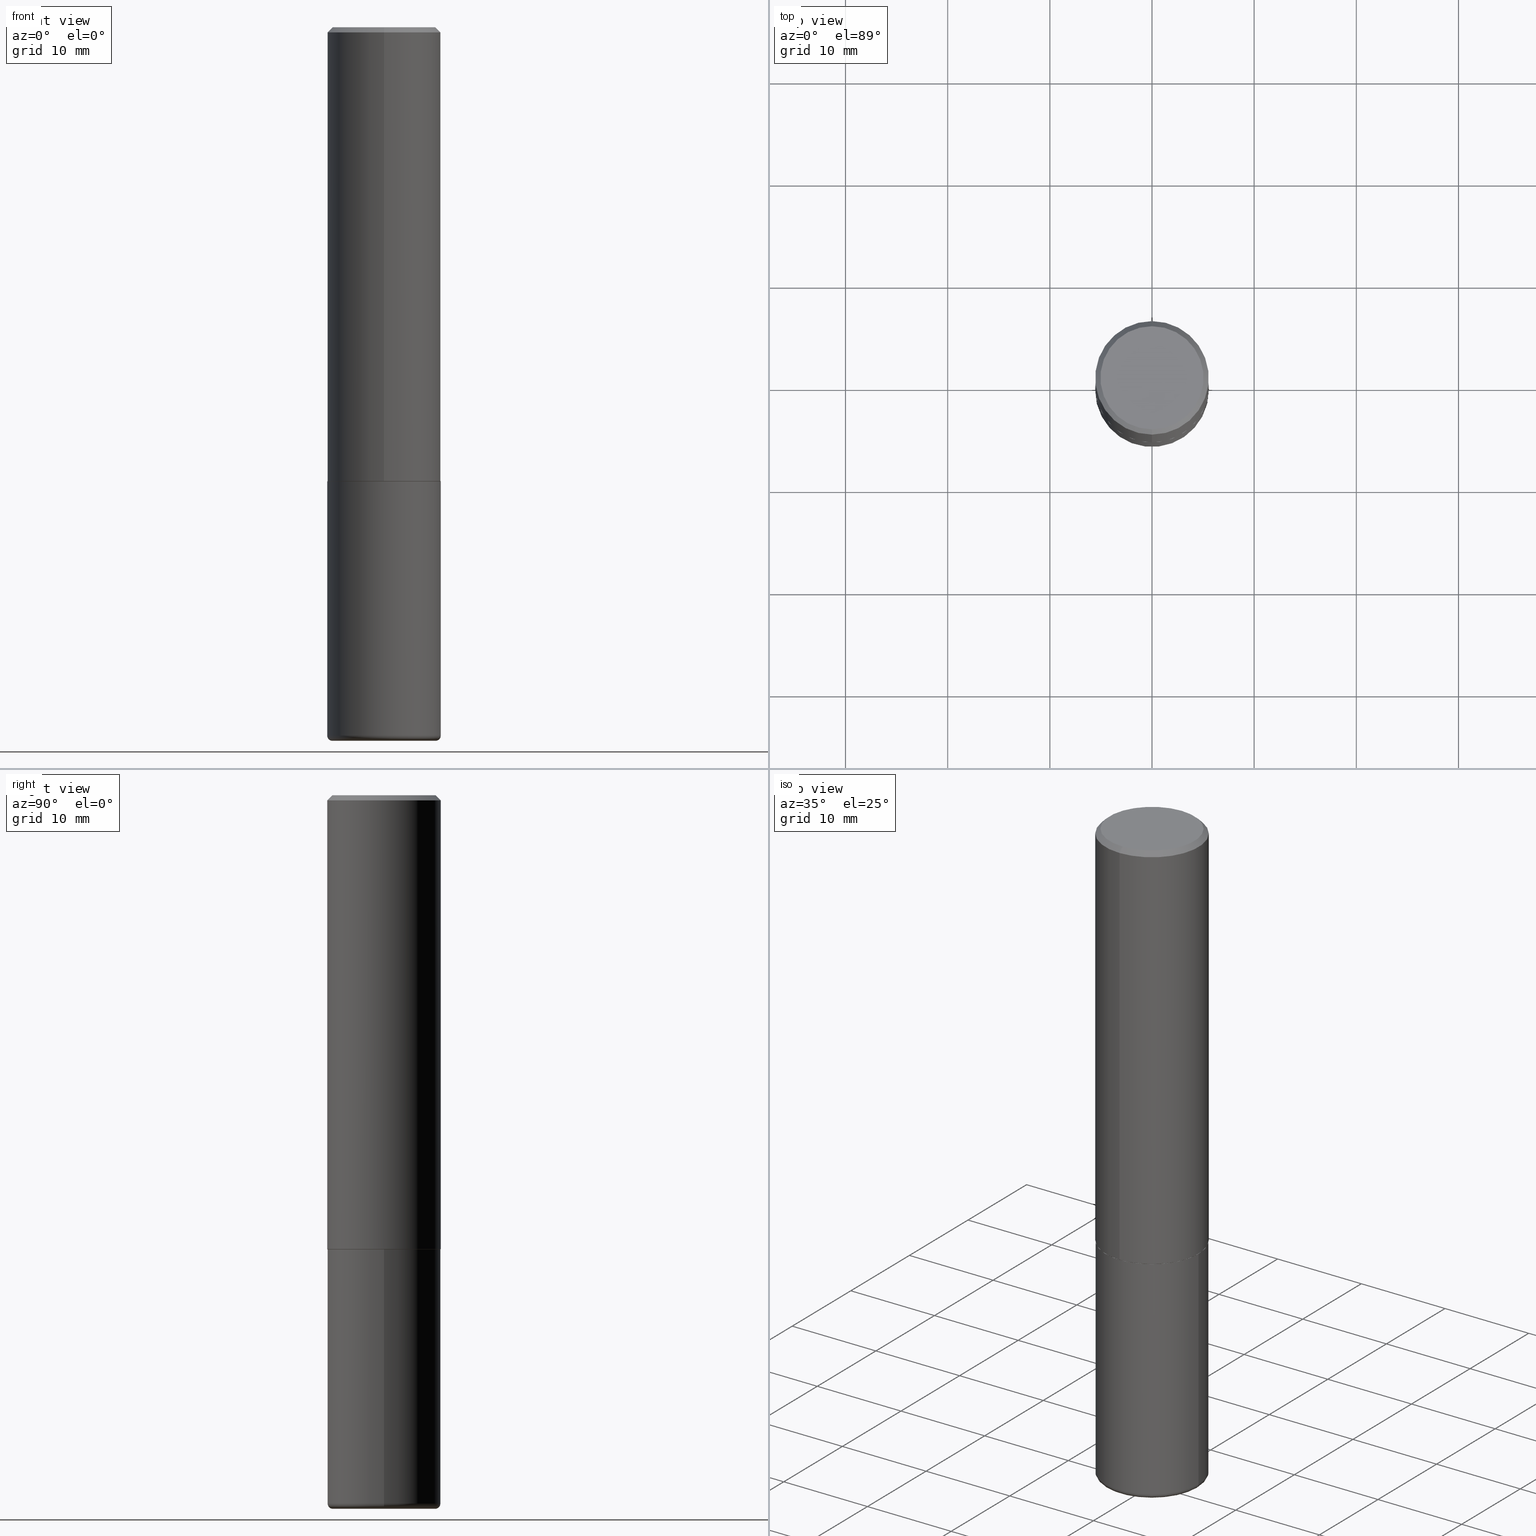
[diagram: canonical four-view strip — front | top / right | iso, engineering-drawing reading convention]
A machine part, canonical four-view strip (front | top / right | iso — engineering-drawing reading convention). The complete STEP part file that produces these views, byte-faithful:
ISO-10303-21;
HEADER;
FILE_DESCRIPTION (( 'STEP AP203' ),
    '1' );
FILE_NAME ('36556.STEP',
    '2024-03-01T16:36:49',
    ( '' ),
    ( '' ),
    'SwSTEP 2.0',
    'SolidWorks 2023',
    '' );
FILE_SCHEMA (( 'CONFIG_CONTROL_DESIGN' ));
ENDSEC;

DATA;
#1 = CALENDAR_DATE ( 2024, 1, 3 ) ;
#2 = DIRECTION ( 'NONE',  ( 2.445702576359042590E-29, -3.491146566648739573E-15, -1.000000000000000000 ) ) ;
#3 = ORIENTED_EDGE ( 'NONE', *, *, #292, .F. ) ;
#4 = DIRECTION ( 'NONE',  ( -6.982962677686265922E-15, -1.000000000000000000, 3.746534391310985612E-15 ) ) ;
#5 = CC_DESIGN_PERSON_AND_ORGANIZATION_ASSIGNMENT ( #188, #384, ( #409 ) ) ;
#6 = PERSON_AND_ORGANIZATION_ROLE ( 'design_supplier' ) ;
#7 = CARTESIAN_POINT ( 'NONE',  ( 4.279570410823988484E-29, -6.110092342975504671E-15, -1.750000000000000000 ) ) ;
#8 = AXIS2_PLACEMENT_3D ( 'NONE', #225, #357, #135 ) ;
#9 = MECHANICAL_CONTEXT ( 'NONE', #272, 'mechanical' ) ;
#10 = LINE ( 'NONE', #168, #274 ) ;
#11 = CARTESIAN_POINT ( 'NONE',  ( 1.527523085743871237E-15, 0.2187499999999999445, -0.02000000000000081574 ) ) ;
#12 = ORIENTED_EDGE ( 'NONE', *, *, #321, .F. ) ;
#13 = DIRECTION ( 'NONE',  ( 4.937700262164546464E-15, 0.7071067811865449082, -0.7071067811865501263 ) ) ;
#14 = APPROVAL ( #74, 'UNSPECIFIED' ) ;
#15 = VECTOR ( 'NONE', #13, 39.37007874015748143 ) ;
#16 = APPROVAL_ROLE ( '' ) ;
#17 = FACE_OUTER_BOUND ( 'NONE', #86, .T. ) ;
#18 = ORIENTED_EDGE ( 'NONE', *, *, #339, .F. ) ;
#19 = ADVANCED_BREP_SHAPE_REPRESENTATION ( '36556', ( #380, #377, #90 ), #353 ) ;
#20 = ORIENTED_EDGE ( 'NONE', *, *, #147, .T. ) ;
#21 = EDGE_CURVE ( 'NONE', #239, #180, #110, .T. ) ;
#22 = LINE ( 'NONE', #240, #297 ) ;
#23 = ORIENTED_EDGE ( 'NONE', *, *, #89, .F. ) ;
#24 = DIMENSIONAL_EXPONENTS ( 1.000000000000000000, 0.000000000000000000, 0.000000000000000000, 0.000000000000000000, 0.000000000000000000, 0.000000000000000000, 0.000000000000000000 ) ;
#25 = APPLICATION_CONTEXT ( 'configuration controlled 3d designs of mechanical parts and assemblies' ) ;
#26 = CARTESIAN_POINT ( 'NONE',  ( 0.1987500000000000100, -1.091960788723193160E-14, -2.729999999999999982 ) ) ;
#27 = ORIENTED_EDGE ( 'NONE', *, *, #304, .T. ) ;
#28 = CIRCLE ( 'NONE', #151, 0.01999999999999988939 ) ;
#29 = LOCAL_TIME ( 11, 36, 49.00000000000000000, #348 ) ;
#30 = AXIS2_PLACEMENT_3D ( 'NONE', #51, #113, #138 ) ;
#31 = DIRECTION ( 'NONE',  ( -2.445468806185136877E-29, 3.491481338843145188E-15, 1.000000000000000000 ) ) ;
#32 = ADVANCED_FACE ( 'NONE', ( #269 ), #359, .T. ) ;
#33 = DIRECTION ( 'NONE',  ( 1.000000000000000000, -6.982962677686265133E-15, 0.000000000000000000 ) ) ;
#34 = APPLICATION_PROTOCOL_DEFINITION ( 'international standard', 'config_control_design', 1994, #25 ) ;
#35 = AXIS2_PLACEMENT_3D ( 'NONE', #7, #101, #187 ) ;
#36 = CARTESIAN_POINT ( 'NONE',  ( -0.1987500000000000100, -8.083400907531010713E-15, -2.750000000000000000 ) ) ;
#37 = PERSON_AND_ORGANIZATION ( #413, #94 ) ;
#38 = LINE ( 'NONE', #73, #195 ) ;
#39 = EDGE_CURVE ( 'NONE', #80, #271, #22, .T. ) ;
#40 = DIRECTION ( 'NONE',  ( -2.445702576359043151E-29, 3.491146566648739573E-15, 1.000000000000000000 ) ) ;
#41 = DIRECTION ( 'NONE',  ( -1.000000000000000000, 6.982962677686265922E-15, -4.876176775795935793E-29 ) ) ;
#42 = CARTESIAN_POINT ( 'NONE',  ( 6.725039217009124520E-29, -9.601573681818649859E-15, -2.750000000000000000 ) ) ;
#43 = AXIS2_PLACEMENT_3D ( 'NONE', #379, #40, #417 ) ;
#44 = AXIS2_PLACEMENT_3D ( 'NONE', #324, #364, #261 ) ;
#45 = APPROVAL_ROLE ( '' ) ;
#46 = CARTESIAN_POINT ( 'NONE',  ( 1.527523085743871237E-15, 0.2187499999999999445, -0.02000000000000081574 ) ) ;
#47 = ORIENTED_EDGE ( 'NONE', *, *, #339, .T. ) ;
#48 = EDGE_CURVE ( 'NONE', #109, #136, #28, .T. ) ;
#49 = FACE_OUTER_BOUND ( 'NONE', #237, .T. ) ;
#50 = ORIENTED_EDGE ( 'NONE', *, *, #304, .F. ) ;
#51 = CARTESIAN_POINT ( 'NONE',  ( 0.000000000000000000, 0.000000000000000000, 0.000000000000000000 ) ) ;
#52 = ORIENTED_EDGE ( 'NONE', *, *, #277, .F. ) ;
#53 = CIRCLE ( 'NONE', #265, 0.2187500000000000278 ) ;
#54 = DIRECTION ( 'NONE',  ( 1.000000000000000000, -6.982962677686265133E-15, 0.000000000000000000 ) ) ;
#55 = CC_DESIGN_PERSON_AND_ORGANIZATION_ASSIGNMENT ( #127, #6, ( #202 ) ) ;
#56 = ORIENTED_EDGE ( 'NONE', *, *, #141, .F. ) ;
#57 = EDGE_LOOP ( 'NONE', ( #368, #366, #226, #407 ) ) ;
#58 = CARTESIAN_POINT ( 'NONE',  ( 6.676129840885423672E-29, -9.531744055041786561E-15, -2.729999999999999982 ) ) ;
#59 = ORIENTED_EDGE ( 'NONE', *, *, #215, .T. ) ;
#60 = DIRECTION ( 'NONE',  ( -2.445702576359043151E-29, 3.491146566648739573E-15, 1.000000000000000000 ) ) ;
#61 = DIRECTION ( 'NONE',  ( -2.445702576359043151E-29, 3.491146566648739573E-15, 1.000000000000000000 ) ) ;
#62 = DIRECTION ( 'NONE',  ( -2.445702576359043151E-29, 3.491146566648739573E-15, 1.000000000000000000 ) ) ;
#63 = CIRCLE ( 'NONE', #84, 0.2187500000000000000 ) ;
#64 = VERTEX_POINT ( 'NONE', #268 ) ;
#65 = CARTESIAN_POINT ( 'NONE',  ( -1.527523085743829428E-15, -0.2187500000000063283, -1.748999999999999000 ) ) ;
#66 = DIRECTION ( 'NONE',  ( 7.105427357601001859E-15, 1.000000000000000000, -3.491481338843145583E-15 ) ) ;
#67 = CALENDAR_DATE ( 2024, 1, 3 ) ;
#68 = CC_DESIGN_PERSON_AND_ORGANIZATION_ASSIGNMENT ( #132, #311, ( #193 ) ) ;
#69 = CARTESIAN_POINT ( 'NONE',  ( 4.891405152718098913E-31, -6.982293133297496204E-17, -0.02000000000000005246 ) ) ;
#70 = APPROVAL_PERSON_ORGANIZATION ( #37, #326, #16 ) ;
#71 = CARTESIAN_POINT ( 'NONE',  ( 0.2187500000000000000, -1.527523085743870843E-15, 1.066663669705360885E-29 ) ) ;
#72 = COORDINATED_UNIVERSAL_TIME_OFFSET ( 5, 0, .BEHIND. ) ;
#73 = CARTESIAN_POINT ( 'NONE',  ( -1.520540123066141639E-15, -0.2177500000000061053, -1.749999999999999112 ) ) ;
#74 = APPROVAL_STATUS ( 'not_yet_approved' ) ;
#75 = DIRECTION ( 'NONE',  ( -2.445468806185136597E-29, 3.491481338843145583E-15, 1.000000000000000000 ) ) ;
#76 = CLOSED_SHELL ( 'NONE', ( #284, #104, #208, #91, #369, #158, #363, #242 ) ) ;
#77 = LOCAL_TIME ( 11, 36, 49.00000000000000000, #245 ) ;
#78 = VERTEX_POINT ( 'NONE', #210 ) ;
#79 = FACE_OUTER_BOUND ( 'NONE', #87, .T. ) ;
#80 = VERTEX_POINT ( 'NONE', #145 ) ;
#81 = FACE_OUTER_BOUND ( 'NONE', #296, .T. ) ;
#82 = LINE ( 'NONE', #46, #15 ) ;
#83 = EDGE_CURVE ( 'NONE', #105, #64, #340, .T. ) ;
#84 = AXIS2_PLACEMENT_3D ( 'NONE', #243, #287, #134 ) ;
#85 = ORIENTED_EDGE ( 'NONE', *, *, #292, .T. ) ;
#86 = EDGE_LOOP ( 'NONE', ( #299, #327, #56, #402 ) ) ;
#87 = EDGE_LOOP ( 'NONE', ( #12, #232 ) ) ;
#88 = CIRCLE ( 'NONE', #281, 0.2187500000000000000 ) ;
#89 = EDGE_CURVE ( 'NONE', #203, #349, #149, .T. ) ;
#90 = AXIS2_PLACEMENT_3D ( 'NONE', #355, #194, #390 ) ;
#91 = ADVANCED_FACE ( 'NONE', ( #306 ), #335, .T. ) ;
#92 = DIRECTION ( 'NONE',  ( 1.000000000000000000, -6.982962677686266711E-15, 4.883557194083112901E-29 ) ) ;
#93 = AXIS2_PLACEMENT_3D ( 'NONE', #95, #351, #252 ) ;
#94 = ORGANIZATION ( 'UNSPECIFIED', 'UNSPECIFIED', '' ) ;
#95 = CARTESIAN_POINT ( 'NONE',  ( 4.279979508628325023E-29, -6.109506491635293661E-15, -1.750000000000000000 ) ) ;
#96 = FACE_OUTER_BOUND ( 'NONE', #57, .T. ) ;
#97 = PERSON_AND_ORGANIZATION ( #413, #94 ) ;
#98 = DIRECTION ( 'NONE',  ( -2.445468806185136597E-29, 3.491481338843145583E-15, 1.000000000000000000 ) ) ;
#99 = DIRECTION ( 'NONE',  ( -6.982962677686265922E-15, -1.000000000000000000, 3.763740060157423393E-15 ) ) ;
#100 = APPROVAL_DATE_TIME ( #251, #347 ) ;
#101 = DIRECTION ( 'NONE',  ( -2.445468806185136597E-29, 3.491481338843145583E-15, 1.000000000000000000 ) ) ;
#102 = VERTEX_POINT ( 'NONE', #153 ) ;
#103 = CARTESIAN_POINT ( 'NONE',  ( 4.279570410823988484E-29, -6.110092342975504671E-15, -1.750000000000000000 ) ) ;
#104 = ADVANCED_FACE ( 'NONE', ( #412 ), #212, .T. ) ;
#105 = VERTEX_POINT ( 'NONE', #65 ) ;
#106 = DIRECTION ( 'NONE',  ( -6.982962677686265922E-15, -1.000000000000000000, 3.491146566648739573E-15 ) ) ;
#107 = ORIENTED_EDGE ( 'NONE', *, *, #111, .T. ) ;
#108 = DIRECTION ( 'NONE',  ( -6.982962677686265922E-15, -1.000000000000000000, 3.492862791899307676E-15 ) ) ;
#109 = VERTEX_POINT ( 'NONE', #354 ) ;
#110 = LINE ( 'NONE', #205, #238 ) ;
#111 = EDGE_CURVE ( 'NONE', #136, #239, #63, .T. ) ;
#112 = CALENDAR_DATE ( 2024, 1, 3 ) ;
#113 = DIRECTION ( 'NONE',  ( -2.445468806185136597E-29, 3.491481338843145583E-15, 1.000000000000000000 ) ) ;
#114 = VERTEX_POINT ( 'NONE', #36 ) ;
#115 = VECTOR ( 'NONE', #31, 39.37007874015748143 ) ;
#116 = APPROVAL_PERSON_ORGANIZATION ( #216, #14, #45 ) ;
#117 = ORIENTED_EDGE ( 'NONE', *, *, #83, .T. ) ;
#118 = DIRECTION ( 'NONE',  ( 1.000000000000000000, -6.982962677686274599E-15, 0.000000000000000000 ) ) ;
#119 = EDGE_CURVE ( 'NONE', #102, #80, #154, .T. ) ;
#120 = ORIENTED_EDGE ( 'NONE', *, *, #383, .T. ) ;
#121 = ORIENTED_EDGE ( 'NONE', *, *, #183, .T. ) ;
#122 = CC_DESIGN_PERSON_AND_ORGANIZATION_ASSIGNMENT ( #290, #319, ( #202 ) ) ;
#123 = PLANE ( 'NONE',  #124 ) ;
#124 = AXIS2_PLACEMENT_3D ( 'NONE', #283, #2, #161 ) ;
#125 = DATE_TIME_ROLE ( 'creation_date' ) ;
#126 = CARTESIAN_POINT ( 'NONE',  ( 6.676129840885423672E-29, -9.531744055041786561E-15, -2.729999999999999982 ) ) ;
#127 = PERSON_AND_ORGANIZATION ( #413, #94 ) ;
#128 = CARTESIAN_POINT ( 'NONE',  ( 4.277533806051965886E-29, -6.106015345068644919E-15, -1.748999999999999888 ) ) ;
#129 = ADVANCED_FACE ( 'NONE', ( #131 ), #181, .T. ) ;
#130 =( NAMED_UNIT ( * ) SI_UNIT ( $, .STERADIAN. ) SOLID_ANGLE_UNIT ( ) );
#131 = FACE_OUTER_BOUND ( 'NONE', #260, .T. ) ;
#132 = PERSON_AND_ORGANIZATION ( #413, #94 ) ;
#133 = AXIS2_PLACEMENT_3D ( 'NONE', #401, #142, #106 ) ;
#134 = DIRECTION ( 'NONE',  ( 1.000000000000000000, -6.982962677686262766E-15, 0.000000000000000000 ) ) ;
#135 = DIRECTION ( 'NONE',  ( -6.982962677686265922E-15, -1.000000000000000000, 3.763740060157423393E-15 ) ) ;
#136 = VERTEX_POINT ( 'NONE', #382 ) ;
#137 = CARTESIAN_POINT ( 'NONE',  ( -1.432128957034806409E-15, -0.1987499999999998990, 7.791690939498065981E-16 ) ) ;
#138 = DIRECTION ( 'NONE',  ( 1.000000000000000000, -6.982962677686266711E-15, 4.876176775795935232E-29 ) ) ;
#139 = AXIS2_PLACEMENT_3D ( 'NONE', #343, #266, #405 ) ;
#140 = CC_DESIGN_SECURITY_CLASSIFICATION ( #146, ( #202 ) ) ;
#141 = EDGE_CURVE ( 'NONE', #105, #80, #352, .T. ) ;
#142 = DIRECTION ( 'NONE',  ( -2.445702576359042590E-29, 3.491146566648739573E-15, 1.000000000000000000 ) ) ;
#143 = EDGE_LOOP ( 'NONE', ( #18, #148 ) ) ;
#144 = APPROVAL_DATE_TIME ( #300, #326 ) ;
#145 = CARTESIAN_POINT ( 'NONE',  ( 1.554312234475241639E-15, 0.2187499999999941158, -1.749000000000000554 ) ) ;
#146 = SECURITY_CLASSIFICATION ( '', '', #191 ) ;
#147 = EDGE_CURVE ( 'NONE', #114, #239, #410, .T. ) ;
#148 = ORIENTED_EDGE ( 'NONE', *, *, #190, .F. ) ;
#149 = CIRCLE ( 'NONE', #367, 0.1987499999999998990 ) ;
#150 = EDGE_CURVE ( 'NONE', #102, #78, #328, .T. ) ;
#151 = AXIS2_PLACEMENT_3D ( 'NONE', #26, #372, #118 ) ;
#152 = AXIS2_PLACEMENT_3D ( 'NONE', #42, #167, #41 ) ;
#153 = CARTESIAN_POINT ( 'NONE',  ( 1.550759520796461843E-15, 0.2177499999999938651, -1.750000000000000666 ) ) ;
#154 = LINE ( 'NONE', #246, #156 ) ;
#155 = LINE ( 'NONE', #71, #115 ) ;
#156 = VECTOR ( 'NONE', #310, 39.37007874015748143 ) ;
#157 = APPROVAL_STATUS ( 'not_yet_approved' ) ;
#158 = ADVANCED_FACE ( 'NONE', ( #96 ), #273, .T. ) ;
#159 = CARTESIAN_POINT ( 'NONE',  ( 6.725039217009124520E-29, -9.601573681818649859E-15, -2.750000000000000000 ) ) ;
#160 = APPROVAL_STATUS ( 'not_yet_approved' ) ;
#161 = DIRECTION ( 'NONE',  ( 6.982962677686265922E-15, 1.000000000000000000, -3.491146566648739573E-15 ) ) ;
#162 = CALENDAR_DATE ( 2024, 1, 3 ) ;
#163 = FACE_OUTER_BOUND ( 'NONE', #408, .T. ) ;
#164 = PRODUCT_RELATED_PRODUCT_CATEGORY ( 'detail', '', ( #193 ) ) ;
#165 = PERSON_AND_ORGANIZATION_ROLE ( 'classification_officer' ) ;
#166 = AXIS2_PLACEMENT_3D ( 'NONE', #69, #182, #280 ) ;
#167 = DIRECTION ( 'NONE',  ( 2.438088387897960049E-29, -3.491481338843145188E-15, -1.000000000000000000 ) ) ;
#168 = CARTESIAN_POINT ( 'NONE',  ( -1.500733937012521938E-15, -0.2187500000000000833, -0.01999999999999928571 ) ) ;
#169 = VERTEX_POINT ( 'NONE', #248 ) ;
#170 = CARTESIAN_POINT ( 'NONE',  ( 4.279979508628325023E-29, -6.109506491635293661E-15, -1.750000000000000000 ) ) ;
#171 = ADVANCED_FACE ( 'NONE', ( #217 ), #346, .T. ) ;
#172 = CARTESIAN_POINT ( 'NONE',  ( 4.279570410823988484E-29, -6.110092342975504671E-15, -1.750000000000000000 ) ) ;
#173 = VECTOR ( 'NONE', #62, 39.37007874015748143 ) ;
#174 = APPROVAL_PERSON_ORGANIZATION ( #97, #347, #286 ) ;
#175 = EDGE_LOOP ( 'NONE', ( #47, #20, #176, #199 ) ) ;
#176 = ORIENTED_EDGE ( 'NONE', *, *, #111, .F. ) ;
#177 = ORIENTED_EDGE ( 'NONE', *, *, #39, .F. ) ;
#178 = AXIS2_PLACEMENT_3D ( 'NONE', #159, #98, #33 ) ;
#179 = CIRCLE ( 'NONE', #389, 0.1987500000000000100 ) ;
#180 = VERTEX_POINT ( 'NONE', #385 ) ;
#181 = TOROIDAL_SURFACE ( 'NONE', #244, 0.1987500000000000100, 0.01999999999999988939 ) ;
#182 = DIRECTION ( 'NONE',  ( 2.445702576359043151E-29, -3.491146566648739573E-15, -1.000000000000000000 ) ) ;
#183 = EDGE_CURVE ( 'NONE', #271, #64, #201, .T. ) ;
#184 = DIRECTION ( 'NONE',  ( 1.000000000000000000, -6.982962677686266711E-15, 4.876176775795935232E-29 ) ) ;
#185 = AXIS2_PLACEMENT_3D ( 'NONE', #295, #197, #396 ) ;
#186 = DATE_AND_TIME ( #67, #29 ) ;
#187 = DIRECTION ( 'NONE',  ( 1.000000000000000000, -6.982962677686267499E-15, 0.000000000000000000 ) ) ;
#188 = PERSON_AND_ORGANIZATION ( #413, #94 ) ;
#189 = CARTESIAN_POINT ( 'NONE',  ( -0.1987500000000000100, -8.119540367718587568E-15, -2.729999999999999982 ) ) ;
#190 = EDGE_CURVE ( 'NONE', #114, #109, #206, .T. ) ;
#191 = SECURITY_CLASSIFICATION_LEVEL ( 'unclassified' ) ;
#192 = DIRECTION ( 'NONE',  ( -4.937700262164969294E-15, -0.7071067811866054154, 0.7071067811864896191 ) ) ;
#193 = PRODUCT ( '36556', '36556', '', ( #9 ) ) ;
#194 = DIRECTION ( 'NONE',  ( 0.000000000000000000, 0.000000000000000000, 1.000000000000000000 ) ) ;
#195 = VECTOR ( 'NONE', #192, 39.37007874015748143 ) ;
#196 = CARTESIAN_POINT ( 'NONE',  ( 6.725039217009124520E-29, -9.601573681818649859E-15, -2.750000000000000000 ) ) ;
#197 = DIRECTION ( 'NONE',  ( -2.445702576359043151E-29, 3.491146566648739573E-15, 1.000000000000000000 ) ) ;
#198 = CYLINDRICAL_SURFACE ( 'NONE', #30, 0.2187500000000000000 ) ;
#199 = ORIENTED_EDGE ( 'NONE', *, *, #48, .F. ) ;
#200 = DIRECTION ( 'NONE',  ( -2.445468806185136597E-29, 3.491481338843145583E-15, 1.000000000000000000 ) ) ;
#201 = CIRCLE ( 'NONE', #301, 0.2187500000000000278 ) ;
#202 = PRODUCT_DEFINITION_FORMATION_WITH_SPECIFIED_SOURCE ( 'ANY', '', #193, .NOT_KNOWN. ) ;
#203 = VERTEX_POINT ( 'NONE', #318 ) ;
#204 = ORIENTED_EDGE ( 'NONE', *, *, #309, .T. ) ;
#205 = CARTESIAN_POINT ( 'NONE',  ( -0.2187500000000000000, 1.554312234475219157E-15, -1.076017050993260622E-29 ) ) ;
#206 = CIRCLE ( 'NONE', #178, 0.1987500000000000100 ) ;
#207 = CIRCLE ( 'NONE', #8, 0.2177499999999999991 ) ;
#208 = ADVANCED_FACE ( 'NONE', ( #163 ), #342, .T. ) ;
#209 = SHAPE_DEFINITION_REPRESENTATION ( #362, #19 ) ;
#210 = CARTESIAN_POINT ( 'NONE',  ( -1.520540123066141639E-15, -0.2177500000000061053, -1.749999999999999112 ) ) ;
#211 = DIRECTION ( 'NONE',  ( -2.445468806185136877E-29, 3.491481338843145188E-15, 1.000000000000000000 ) ) ;
#212 = CYLINDRICAL_SURFACE ( 'NONE', #139, 0.2187500000000001388 ) ;
#213 = ORIENTED_EDGE ( 'NONE', *, *, #141, .T. ) ;
#214 = DIRECTION ( 'NONE',  ( 1.000000000000000000, -6.982962677686266711E-15, 4.883557194083112901E-29 ) ) ;
#215 = EDGE_CURVE ( 'NONE', #180, #169, #378, .T. ) ;
#216 = PERSON_AND_ORGANIZATION ( #413, #94 ) ;
#217 = FACE_OUTER_BOUND ( 'NONE', #263, .T. ) ;
#218 = PERSON_AND_ORGANIZATION ( #413, #94 ) ;
#219 = CLOSED_SHELL ( 'NONE', ( #373, #32, #257, #171, #129, #391 ) ) ;
#220 = EDGE_CURVE ( 'NONE', #136, #169, #155, .T. ) ;
#221 = CARTESIAN_POINT ( 'NONE',  ( -0.2187499999999999445, -7.977431820566568982E-15, -2.729999999999999982 ) ) ;
#222 = APPROVAL_DATE_TIME ( #415, #14 ) ;
#223 = DIRECTION ( 'NONE',  ( -2.445468806185136597E-29, 3.491481338843145583E-15, 1.000000000000000000 ) ) ;
#224 = APPLICATION_PROTOCOL_DEFINITION ( 'international standard', 'config_control_design', 1994, #272 ) ;
#225 = CARTESIAN_POINT ( 'NONE',  ( 4.279979508628325023E-29, -6.109506491635293661E-15, -1.750000000000000000 ) ) ;
#226 = ORIENTED_EDGE ( 'NONE', *, *, #229, .T. ) ;
#227 = AXIS2_PLACEMENT_3D ( 'NONE', #172, #293, #254 ) ;
#228 = FACE_OUTER_BOUND ( 'NONE', #294, .T. ) ;
#229 = EDGE_CURVE ( 'NONE', #78, #105, #38, .T. ) ;
#230 = DIRECTION ( 'NONE',  ( -4.851104656540962697E-15, -0.7071067811865497932, -0.7071067811865452413 ) ) ;
#231 = FACE_OUTER_BOUND ( 'NONE', #143, .T. ) ;
#232 = ORIENTED_EDGE ( 'NONE', *, *, #150, .F. ) ;
#233 = AXIS2_PLACEMENT_3D ( 'NONE', #58, #303, #92 ) ;
#234 = CC_DESIGN_PERSON_AND_ORGANIZATION_ASSIGNMENT ( #218, #165, ( #146 ) ) ;
#235 = ORIENTED_EDGE ( 'NONE', *, *, #333, .F. ) ;
#236 = EDGE_LOOP ( 'NONE', ( #213, #276, #331, #336 ) ) ;
#237 = EDGE_LOOP ( 'NONE', ( #395, #59 ) ) ;
#238 = VECTOR ( 'NONE', #211, 39.37007874015748143 ) ;
#239 = VERTEX_POINT ( 'NONE', #221 ) ;
#240 = CARTESIAN_POINT ( 'NONE',  ( 1.554312234475219748E-15, 0.2187500000000001388, -7.636883114544122006E-16 ) ) ;
#241 = DIRECTION ( 'NONE',  ( 6.982962677686265922E-15, 1.000000000000000000, -3.492862791899307676E-15 ) ) ;
#242 = ADVANCED_FACE ( 'NONE', ( #278 ), #123, .F. ) ;
#243 = CARTESIAN_POINT ( 'NONE',  ( 6.676129840885423672E-29, -9.531744055041786561E-15, -2.729999999999999982 ) ) ;
#244 = AXIS2_PLACEMENT_3D ( 'NONE', #126, #223, #214 ) ;
#245 = COORDINATED_UNIVERSAL_TIME_OFFSET ( 5, 0, .BEHIND. ) ;
#246 = CARTESIAN_POINT ( 'NONE',  ( 1.547206807117660550E-15, 0.2177499999999938651, -1.750000000000000666 ) ) ;
#247 =( NAMED_UNIT ( * ) PLANE_ANGLE_UNIT ( ) SI_UNIT ( $, .RADIAN. ) );
#248 = CARTESIAN_POINT ( 'NONE',  ( 0.2187500000000000000, -7.637615428719375514E-15, -1.750000000000000000 ) ) ;
#249 = EDGE_CURVE ( 'NONE', #80, #105, #258, .T. ) ;
#250 = CARTESIAN_POINT ( 'NONE',  ( 4.279979508628325023E-29, -6.109506491635293661E-15, -1.750000000000000000 ) ) ;
#251 = DATE_AND_TIME ( #282, #77 ) ;
#252 = DIRECTION ( 'NONE',  ( -6.982962677686265922E-15, -1.000000000000000000, 3.763740060157423393E-15 ) ) ;
#253 =( CONVERSION_BASED_UNIT ( 'INCH', #393 ) LENGTH_UNIT ( ) NAMED_UNIT ( #24 ) );
#254 = DIRECTION ( 'NONE',  ( -1.000000000000000000, 6.982962677686265922E-15, -4.876176775795935793E-29 ) ) ;
#255 = ORIENTED_EDGE ( 'NONE', *, *, #249, .T. ) ;
#256 = PLANE ( 'NONE',  #133 ) ;
#257 = ADVANCED_FACE ( 'NONE', ( #49 ), #291, .F. ) ;
#258 = CIRCLE ( 'NONE', #416, 0.2187500000000002220 ) ;
#259 = CARTESIAN_POINT ( 'NONE',  ( 4.891405152718098913E-31, -6.982293133297496204E-17, -0.02000000000000005246 ) ) ;
#260 = EDGE_LOOP ( 'NONE', ( #341, #397, #370, #52 ) ) ;
#261 = DIRECTION ( 'NONE',  ( -6.982962677686265133E-15, -1.000000000000000000, 3.491146566648739178E-15 ) ) ;
#262 = CC_DESIGN_DATE_AND_TIME_ASSIGNMENT ( #345, #125, ( #409 ) ) ;
#263 = EDGE_LOOP ( 'NONE', ( #308, #400, #332, #330 ) ) ;
#264 = AXIS2_PLACEMENT_3D ( 'NONE', #189, #66, #392 ) ;
#265 = AXIS2_PLACEMENT_3D ( 'NONE', #259, #399, #108 ) ;
#266 = DIRECTION ( 'NONE',  ( -2.445702576359043151E-29, 3.491146566648739573E-15, 1.000000000000000000 ) ) ;
#267 = ORIENTED_EDGE ( 'NONE', *, *, #89, .T. ) ;
#268 = CARTESIAN_POINT ( 'NONE',  ( -1.500733937012521938E-15, -0.2187500000000000833, -0.01999999999999928571 ) ) ;
#269 = FACE_OUTER_BOUND ( 'NONE', #175, .T. ) ;
#270 = CC_DESIGN_DATE_AND_TIME_ASSIGNMENT ( #186, #315, ( #146 ) ) ;
#271 = VERTEX_POINT ( 'NONE', #11 ) ;
#272 = APPLICATION_CONTEXT ( 'configuration controlled 3d designs of mechanical parts and assemblies' ) ;
#273 = CONICAL_SURFACE ( 'NONE', #93, 0.2177499999999999991, 0.7853981633975336552 ) ;
#274 = VECTOR ( 'NONE', #230, 39.37007874015748143 ) ;
#275 = CARTESIAN_POINT ( 'NONE',  ( 4.891405152718098913E-31, -6.982293133297496204E-17, -0.02000000000000005246 ) ) ;
#276 = ORIENTED_EDGE ( 'NONE', *, *, #39, .T. ) ;
#277 = EDGE_CURVE ( 'NONE', #239, #136, #88, .T. ) ;
#278 = FACE_OUTER_BOUND ( 'NONE', #403, .T. ) ;
#279 =( LENGTH_UNIT ( ) NAMED_UNIT ( * ) SI_UNIT ( $, .METRE. ) );
#280 = DIRECTION ( 'NONE',  ( 6.982962677686265922E-15, 1.000000000000000000, -3.492862791899307676E-15 ) ) ;
#281 = AXIS2_PLACEMENT_3D ( 'NONE', #325, #329, #298 ) ;
#282 = CALENDAR_DATE ( 2024, 1, 3 ) ;
#283 = CARTESIAN_POINT ( 'NONE',  ( 1.387863832190144641E-15, 0.1987499999999998990, -6.512135232072516097E-16 ) ) ;
#284 = ADVANCED_FACE ( 'NONE', ( #17 ), #313, .T. ) ;
#285 = DIRECTION ( 'NONE',  ( -2.445702576359043151E-29, 3.491146566648739573E-15, 1.000000000000000000 ) ) ;
#286 = APPROVAL_ROLE ( '' ) ;
#287 = DIRECTION ( 'NONE',  ( -2.445468806185136597E-29, 3.491481338843145583E-15, 1.000000000000000000 ) ) ;
#288 = AXIS2_PLACEMENT_3D ( 'NONE', #250, #387, #99 ) ;
#289 = AXIS2_PLACEMENT_3D ( 'NONE', #103, #75, #365 ) ;
#290 = PERSON_AND_ORGANIZATION ( #413, #94 ) ;
#291 = PLANE ( 'NONE',  #227 ) ;
#292 = EDGE_CURVE ( 'NONE', #349, #203, #398, .T. ) ;
#293 = DIRECTION ( 'NONE',  ( 2.438088387897960049E-29, -3.491481338843145188E-15, -1.000000000000000000 ) ) ;
#294 = EDGE_LOOP ( 'NONE', ( #177, #255, #117, #406 ) ) ;
#295 = CARTESIAN_POINT ( 'NONE',  ( -2.086275126830390438E-45, 2.978077676543005587E-31, 8.530371382837000053E-17 ) ) ;
#296 = EDGE_LOOP ( 'NONE', ( #107, #338, #235, #361 ) ) ;
#297 = VECTOR ( 'NONE', #60, 39.37007874015748143 ) ;
#298 = DIRECTION ( 'NONE',  ( 1.000000000000000000, -6.982962677686262766E-15, 0.000000000000000000 ) ) ;
#299 = ORIENTED_EDGE ( 'NONE', *, *, #321, .T. ) ;
#300 = DATE_AND_TIME ( #112, #381 ) ;
#301 = AXIS2_PLACEMENT_3D ( 'NONE', #344, #312, #356 ) ;
#302 = LOCAL_TIME ( 11, 36, 49.00000000000000000, #317 ) ;
#303 = DIRECTION ( 'NONE',  ( -2.445468806185136597E-29, 3.491481338843145583E-15, 1.000000000000000000 ) ) ;
#304 = EDGE_CURVE ( 'NONE', #203, #271, #82, .T. ) ;
#305 = DIRECTION ( 'NONE',  ( 2.445702576359043151E-29, -3.491146566648739573E-15, -1.000000000000000000 ) ) ;
#306 = FACE_OUTER_BOUND ( 'NONE', #358, .T. ) ;
#307 = CC_DESIGN_APPROVAL ( #326, ( #146 ) ) ;
#308 = ORIENTED_EDGE ( 'NONE', *, *, #21, .F. ) ;
#309 = EDGE_CURVE ( 'NONE', #349, #64, #10, .T. ) ;
#310 = DIRECTION ( 'NONE',  ( 5.024295867788490741E-15, 0.7071067811866103003, 0.7071067811864847341 ) ) ;
#311 = PERSON_AND_ORGANIZATION_ROLE ( 'design_owner' ) ;
#312 = DIRECTION ( 'NONE',  ( -2.445702576359043151E-29, 3.491146566648739573E-15, 1.000000000000000000 ) ) ;
#313 = CONICAL_SURFACE ( 'NONE', #371, 0.2177499999999999991, 0.7853981633975336552 ) ;
#314 = LOCAL_TIME ( 11, 36, 49.00000000000000000, #72 ) ;
#315 = DATE_TIME_ROLE ( 'classification_date' ) ;
#316 = DIRECTION ( 'NONE',  ( -2.445468806185136597E-29, 3.491481338843145583E-15, 1.000000000000000000 ) ) ;
#317 = COORDINATED_UNIVERSAL_TIME_OFFSET ( 5, 0, .BEHIND. ) ;
#318 = CARTESIAN_POINT ( 'NONE',  ( 1.457693458967007939E-15, 0.1987499999999998990, -6.085616662930666464E-16 ) ) ;
#319 = PERSON_AND_ORGANIZATION_ROLE ( 'creator' ) ;
#320 = PLANE ( 'NONE',  #152 ) ;
#321 = EDGE_CURVE ( 'NONE', #78, #102, #207, .T. ) ;
#322 = CC_DESIGN_APPROVAL ( #14, ( #409 ) ) ;
#323 = DIRECTION ( 'NONE',  ( -6.982962677686265922E-15, -1.000000000000000000, 3.763740060157423393E-15 ) ) ;
#324 = CARTESIAN_POINT ( 'NONE',  ( 0.000000000000000000, 0.000000000000000000, 0.000000000000000000 ) ) ;
#325 = CARTESIAN_POINT ( 'NONE',  ( 6.676129840885423672E-29, -9.531744055041786561E-15, -2.729999999999999982 ) ) ;
#326 = APPROVAL ( #160, 'UNSPECIFIED' ) ;
#327 = ORIENTED_EDGE ( 'NONE', *, *, #119, .T. ) ;
#328 = CIRCLE ( 'NONE', #288, 0.2177499999999999991 ) ;
#329 = DIRECTION ( 'NONE',  ( -2.445468806185136597E-29, 3.491481338843145583E-15, 1.000000000000000000 ) ) ;
#330 = ORIENTED_EDGE ( 'NONE', *, *, #215, .F. ) ;
#331 = ORIENTED_EDGE ( 'NONE', *, *, #383, .F. ) ;
#332 = ORIENTED_EDGE ( 'NONE', *, *, #220, .T. ) ;
#333 = EDGE_CURVE ( 'NONE', #169, #180, #418, .T. ) ;
#334 = COORDINATED_UNIVERSAL_TIME_OFFSET ( 5, 0, .BEHIND. ) ;
#335 = CONICAL_SURFACE ( 'NONE', #404, 0.2187500000000000278, 0.7853981633974480570 ) ;
#336 = ORIENTED_EDGE ( 'NONE', *, *, #83, .F. ) ;
#337 = CARTESIAN_POINT ( 'NONE',  ( -2.086275126830390438E-45, 2.978077676543005587E-31, 8.530371382837000053E-17 ) ) ;
#338 = ORIENTED_EDGE ( 'NONE', *, *, #21, .T. ) ;
#339 = EDGE_CURVE ( 'NONE', #109, #114, #179, .T. ) ;
#340 = LINE ( 'NONE', #374, #173 ) ;
#341 = ORIENTED_EDGE ( 'NONE', *, *, #147, .F. ) ;
#342 = CONICAL_SURFACE ( 'NONE', #166, 0.2187500000000000278, 0.7853981633974480570 ) ;
#343 = CARTESIAN_POINT ( 'NONE',  ( 0.000000000000000000, 0.000000000000000000, 0.000000000000000000 ) ) ;
#344 = CARTESIAN_POINT ( 'NONE',  ( 4.891405152718098913E-31, -6.982293133297496204E-17, -0.02000000000000005246 ) ) ;
#345 = DATE_AND_TIME ( #162, #302 ) ;
#346 = CYLINDRICAL_SURFACE ( 'NONE', #388, 0.2187500000000000000 ) ;
#347 = APPROVAL ( #157, 'UNSPECIFIED' ) ;
#348 = COORDINATED_UNIVERSAL_TIME_OFFSET ( 5, 0, .BEHIND. ) ;
#349 = VERTEX_POINT ( 'NONE', #137 ) ;
#350 = DESIGN_CONTEXT ( 'detailed design', #25, 'design' ) ;
#351 = DIRECTION ( 'NONE',  ( -2.445702576359043151E-29, 3.491146566648739573E-15, 1.000000000000000000 ) ) ;
#352 = CIRCLE ( 'NONE', #43, 0.2187500000000002220 ) ;
#353 =( GEOMETRIC_REPRESENTATION_CONTEXT ( 3 ) GLOBAL_UNCERTAINTY_ASSIGNED_CONTEXT ( ( #386 ) ) GLOBAL_UNIT_ASSIGNED_CONTEXT ( ( #253, #247, #130 ) ) REPRESENTATION_CONTEXT ( 'NONE', 'WORKASPACE' ) );
#354 = CARTESIAN_POINT ( 'NONE',  ( 0.1987500000000000100, -1.098943751400879489E-14, -2.750000000000000000 ) ) ;
#355 = CARTESIAN_POINT ( 'NONE',  ( 0.000000000000000000, 0.000000000000000000, 0.000000000000000000 ) ) ;
#356 = DIRECTION ( 'NONE',  ( -6.982962677686265922E-15, -1.000000000000000000, 3.492862791899307676E-15 ) ) ;
#357 = DIRECTION ( 'NONE',  ( -2.445702576359043151E-29, 3.491146566648739573E-15, 1.000000000000000000 ) ) ;
#358 = EDGE_LOOP ( 'NONE', ( #375, #23, #27, #121 ) ) ;
#359 = TOROIDAL_SURFACE ( 'NONE', #233, 0.1987500000000000100, 0.01999999999999988939 ) ;
#360 = CYLINDRICAL_SURFACE ( 'NONE', #44, 0.2187500000000001388 ) ;
#361 = ORIENTED_EDGE ( 'NONE', *, *, #220, .F. ) ;
#362 = PRODUCT_DEFINITION_SHAPE ( 'NONE', 'NONE',  #409 ) ;
#363 = ADVANCED_FACE ( 'NONE', ( #79 ), #256, .F. ) ;
#364 = DIRECTION ( 'NONE',  ( -2.445702576359043151E-29, 3.491146566648739573E-15, 1.000000000000000000 ) ) ;
#365 = DIRECTION ( 'NONE',  ( 1.000000000000000000, -6.982962677686267499E-15, 0.000000000000000000 ) ) ;
#366 = ORIENTED_EDGE ( 'NONE', *, *, #150, .T. ) ;
#367 = AXIS2_PLACEMENT_3D ( 'NONE', #337, #61, #376 ) ;
#368 = ORIENTED_EDGE ( 'NONE', *, *, #119, .F. ) ;
#369 = ADVANCED_FACE ( 'NONE', ( #228 ), #360, .T. ) ;
#370 = ORIENTED_EDGE ( 'NONE', *, *, #48, .T. ) ;
#371 = AXIS2_PLACEMENT_3D ( 'NONE', #170, #394, #323 ) ;
#372 = DIRECTION ( 'NONE',  ( -6.982962677686266711E-15, -1.000000000000000000, 3.491481338843145583E-15 ) ) ;
#373 = ADVANCED_FACE ( 'NONE', ( #81 ), #198, .T. ) ;
#374 = CARTESIAN_POINT ( 'NONE',  ( -1.527523085743871435E-15, -0.2187500000000001388, 7.636883114544122006E-16 ) ) ;
#375 = ORIENTED_EDGE ( 'NONE', *, *, #309, .F. ) ;
#376 = DIRECTION ( 'NONE',  ( -6.982962677686265922E-15, -1.000000000000000000, 3.491146566648739178E-15 ) ) ;
#377 = MANIFOLD_SOLID_BREP ( 'Body-Move/Copy2[2]', #76 ) ;
#378 = CIRCLE ( 'NONE', #35, 0.2187500000000000000 ) ;
#379 = CARTESIAN_POINT ( 'NONE',  ( 4.277533806051965886E-29, -6.106015345068644919E-15, -1.748999999999999888 ) ) ;
#380 = MANIFOLD_SOLID_BREP ( 'Body-Move/Copy2[1]', #219 ) ;
#381 = LOCAL_TIME ( 11, 36, 49.00000000000000000, #334 ) ;
#382 = CARTESIAN_POINT ( 'NONE',  ( 0.2187499999999999445, -1.105926714078565662E-14, -2.729999999999999982 ) ) ;
#383 = EDGE_CURVE ( 'NONE', #64, #271, #53, .T. ) ;
#384 = PERSON_AND_ORGANIZATION_ROLE ( 'creator' ) ;
#385 = CARTESIAN_POINT ( 'NONE',  ( -0.2187500000000000000, -6.266605964533427643E-15, -1.750000000000000000 ) ) ;
#386 = UNCERTAINTY_MEASURE_WITH_UNIT (LENGTH_MEASURE( 1.000000000000000082E-05 ), #253, 'distance_accuracy_value', 'NONE');
#387 = DIRECTION ( 'NONE',  ( -2.445702576359043151E-29, 3.491146566648739573E-15, 1.000000000000000000 ) ) ;
#388 = AXIS2_PLACEMENT_3D ( 'NONE', #414, #316, #184 ) ;
#389 = AXIS2_PLACEMENT_3D ( 'NONE', #196, #200, #54 ) ;
#390 = DIRECTION ( 'NONE',  ( 1.000000000000000000, 0.000000000000000000, 0.000000000000000000 ) ) ;
#391 = ADVANCED_FACE ( 'NONE', ( #231 ), #320, .T. ) ;
#392 = DIRECTION ( 'NONE',  ( -1.000000000000000000, 7.105427357601014480E-15, 0.000000000000000000 ) ) ;
#393 = LENGTH_MEASURE_WITH_UNIT ( LENGTH_MEASURE( 0.02539999999999999897 ), #279 );
#394 = DIRECTION ( 'NONE',  ( -2.445702576359043151E-29, 3.491146566648739573E-15, 1.000000000000000000 ) ) ;
#395 = ORIENTED_EDGE ( 'NONE', *, *, #333, .T. ) ;
#396 = DIRECTION ( 'NONE',  ( -6.982962677686265922E-15, -1.000000000000000000, 3.491146566648739178E-15 ) ) ;
#397 = ORIENTED_EDGE ( 'NONE', *, *, #190, .T. ) ;
#398 = CIRCLE ( 'NONE', #185, 0.1987499999999998990 ) ;
#399 = DIRECTION ( 'NONE',  ( -2.445702576359043151E-29, 3.491146566648739573E-15, 1.000000000000000000 ) ) ;
#400 = ORIENTED_EDGE ( 'NONE', *, *, #277, .T. ) ;
#401 = CARTESIAN_POINT ( 'NONE',  ( 4.279979508628325023E-29, -6.109506491635293661E-15, -1.750000000000000000 ) ) ;
#402 = ORIENTED_EDGE ( 'NONE', *, *, #229, .F. ) ;
#403 = EDGE_LOOP ( 'NONE', ( #267, #85 ) ) ;
#404 = AXIS2_PLACEMENT_3D ( 'NONE', #275, #305, #241 ) ;
#405 = DIRECTION ( 'NONE',  ( -6.982962677686265133E-15, -1.000000000000000000, 3.491146566648739178E-15 ) ) ;
#406 = ORIENTED_EDGE ( 'NONE', *, *, #183, .F. ) ;
#407 = ORIENTED_EDGE ( 'NONE', *, *, #249, .F. ) ;
#408 = EDGE_LOOP ( 'NONE', ( #3, #204, #120, #50 ) ) ;
#409 = PRODUCT_DEFINITION ( 'UNKNOWN', '', #202, #350 ) ;
#410 = CIRCLE ( 'NONE', #264, 0.01999999999999988939 ) ;
#411 = CC_DESIGN_APPROVAL ( #347, ( #202 ) ) ;
#412 = FACE_OUTER_BOUND ( 'NONE', #236, .T. ) ;
#413 = PERSON ( 'UNSPECIFIED', 'UNSPECIFIED', 'UNSPECIFIED', ('UNSPECIFIED'), ('UNSPECIFIED'), ('UNSPECIFIED') ) ;
#414 = CARTESIAN_POINT ( 'NONE',  ( 0.000000000000000000, 0.000000000000000000, 0.000000000000000000 ) ) ;
#415 = DATE_AND_TIME ( #1, #314 ) ;
#416 = AXIS2_PLACEMENT_3D ( 'NONE', #128, #285, #4 ) ;
#417 = DIRECTION ( 'NONE',  ( -6.982962677686265922E-15, -1.000000000000000000, 3.746534391310985612E-15 ) ) ;
#418 = CIRCLE ( 'NONE', #289, 0.2187500000000000000 ) ;
ENDSEC;
END-ISO-10303-21;
